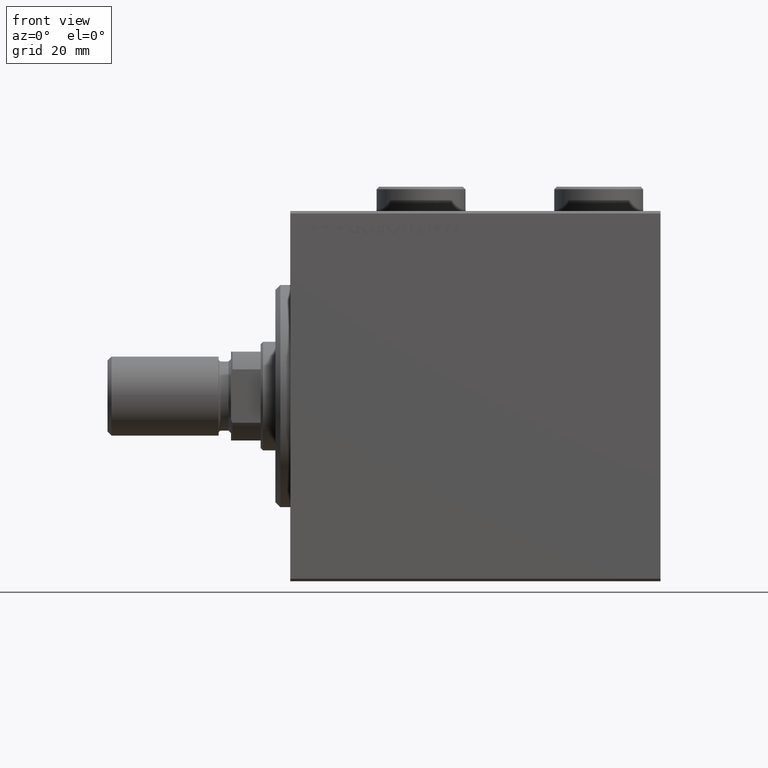
[diagram: clean part render]
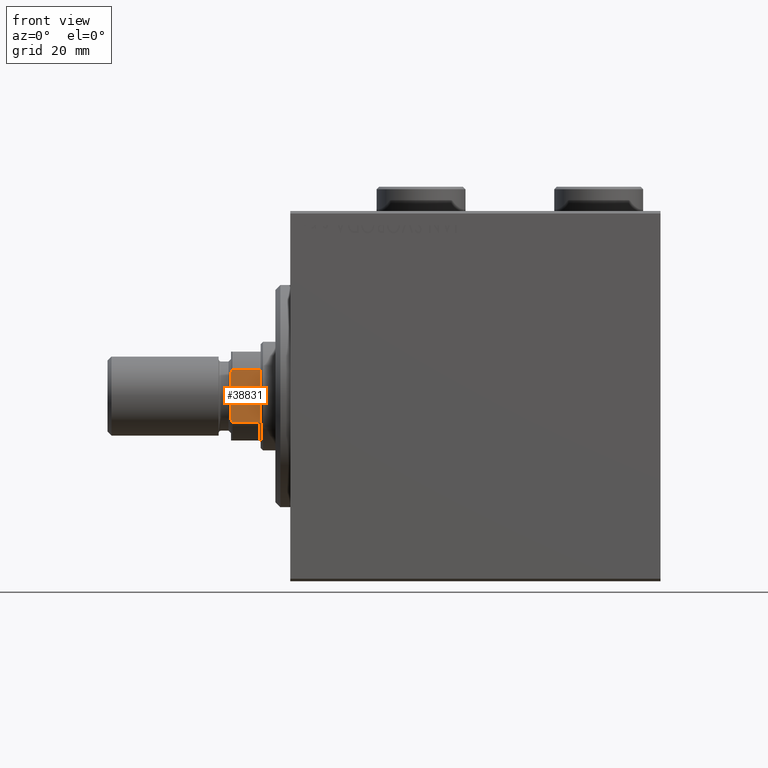
[diagram: same view with one face highlighted and labeled with its STEP entity id]
A machine part, front view. The second image highlights one B-rep face of the part: STEP entity #38831.
In plain terms, the highlighted planar face has unit normal (0, 1, 0).
Its self-contained STEP definition (entity closure, byte-faithful):
#1199 = CARTESIAN_POINT ( 'NONE',  ( 4.800000000000006928, -9.000000000000001776, 77.00000000000001421 ) ) ;
#1614 = LINE ( 'NONE', #12778, #33532 ) ;
#2378 = EDGE_CURVE ( 'NONE', #13527, #15455, #12518, .T. ) ;
#2830 = CARTESIAN_POINT ( 'NONE',  ( -4.799999999999995381, -9.000000000000001776, 77.00000000000001421 ) ) ;
#3049 = DIRECTION ( 'NONE',  ( -0.000000000000000000, -0.000000000000000000, 1.000000000000000000 ) ) ;
#3078 = FACE_OUTER_BOUND ( 'NONE', #22527, .T. ) ;
#3727 = VERTEX_POINT ( 'NONE', #34251 ) ;
#6006 = CARTESIAN_POINT ( 'NONE',  ( -5.207299490555470811, -9.000000000000001776, 76.80354495430069051 ) ) ;
#6024 = CARTESIAN_POINT ( 'NONE',  ( 5.207299490555477028, -8.999999999999998224, 76.80354495430069051 ) ) ;
#6805 = DIRECTION ( 'NONE',  ( 0.000000000000000000, 1.000000000000000000, 0.000000000000000000 ) ) ;
#9135 = ORIENTED_EDGE ( 'NONE', *, *, #32938, .T. ) ;
#10020 = CARTESIAN_POINT ( 'NONE',  ( 5.408326913195988794, -8.999999999999998224, -0.001000000000001000089 ) ) ;
#12048 = CARTESIAN_POINT ( 'NONE',  ( 4.800000000000006928, -9.000000000000001776, 77.00000000000001421 ) ) ;
#12518 = B_SPLINE_CURVE_WITH_KNOTS ( 'NONE', 3,
 ( #35082, #16923, #6006, #20184 ),
 .UNSPECIFIED., .F., .F.,
 ( 4, 4 ),
 ( 0.000000000000000000, 0.0006782784334759310802 ),
 .UNSPECIFIED. ) ;
#12778 = CARTESIAN_POINT ( 'NONE',  ( -8.999999999999998224, -9.000000000000001776, 77.00000000000001421 ) ) ;
#13527 = VERTEX_POINT ( 'NONE', #2830 ) ;
#13936 = CARTESIAN_POINT ( 'NONE',  ( -5.408326913195988794, -8.999999999999998224, 71.00000000000002842 ) ) ;
#15091 = LINE ( 'NONE', #28596, #39878 ) ;
#15455 = VERTEX_POINT ( 'NONE', #18051 ) ;
#16923 = CARTESIAN_POINT ( 'NONE',  ( -5.004607318780298186, -9.000000000000001776, 76.90371420292693472 ) ) ;
#17390 = EDGE_CURVE ( 'NONE', #3727, #42357, #31199, .T. ) ;
#17641 = CARTESIAN_POINT ( 'NONE',  ( -8.999999999999998224, -9.000000000000001776, 71.00000000000001421 ) ) ;
#17866 = DIRECTION ( 'NONE',  ( 1.000000000000000000, 0.000000000000000000, 0.000000000000000000 ) ) ;
#18051 = CARTESIAN_POINT ( 'NONE',  ( -5.408326913195988794, -8.999999999999998224, 76.70000000000001705 ) ) ;
#19986 = DIRECTION ( 'NONE',  ( 1.000000000000000000, 0.000000000000000000, 0.000000000000000000 ) ) ;
#20184 = CARTESIAN_POINT ( 'NONE',  ( -5.408326913195988794, -8.999999999999998224, 76.70000000000001705 ) ) ;
#20199 = CARTESIAN_POINT ( 'NONE',  ( 5.408326913195988794, -8.999999999999998224, 76.70000000000001705 ) ) ;
#22527 = EDGE_LOOP ( 'NONE', ( #28917, #9135, #38821, #25252, #42007, #36898 ) ) ;
#22771 = EDGE_CURVE ( 'NONE', #31073, #15455, #15091, .T. ) ;
#25252 = ORIENTED_EDGE ( 'NONE', *, *, #2378, .T. ) ;
#27955 = PLANE ( 'NONE',  #42438 ) ;
#28596 = CARTESIAN_POINT ( 'NONE',  ( -5.408326913195988794, -8.999999999999998224, -0.001000000000001000089 ) ) ;
#28917 = ORIENTED_EDGE ( 'NONE', *, *, #17390, .T. ) ;
#28959 = VECTOR ( 'NONE', #17866, 1000.000000000000000 ) ;
#29270 = CARTESIAN_POINT ( 'NONE',  ( 5.408326913195988794, -8.999999999999998224, 76.70000000000001705 ) ) ;
#31073 = VERTEX_POINT ( 'NONE', #13936 ) ;
#31199 = LINE ( 'NONE', #10020, #45679 ) ;
#31465 = CARTESIAN_POINT ( 'NONE',  ( -8.999999999999998224, -9.000000000000001776, 77.00000000000001421 ) ) ;
#32671 = B_SPLINE_CURVE_WITH_KNOTS ( 'NONE', 3,
 ( #20199, #6024, #43938, #12048 ),
 .UNSPECIFIED., .F., .F.,
 ( 4, 4 ),
 ( 0.000000000000000000, 0.0006782784334759201297 ),
 .UNSPECIFIED. ) ;
#32938 = EDGE_CURVE ( 'NONE', #42357, #44157, #32671, .T. ) ;
#33532 = VECTOR ( 'NONE', #19986, 1000.000000000000000 ) ;
#34251 = CARTESIAN_POINT ( 'NONE',  ( 5.408326913195988794, -8.999999999999998224, 71.00000000000002842 ) ) ;
#35082 = CARTESIAN_POINT ( 'NONE',  ( -4.799999999999995381, -9.000000000000001776, 77.00000000000001421 ) ) ;
#35821 = DIRECTION ( 'NONE',  ( -0.000000000000000000, -0.000000000000000000, 1.000000000000000000 ) ) ;
#36898 = ORIENTED_EDGE ( 'NONE', *, *, #37167, .T. ) ;
#37167 = EDGE_CURVE ( 'NONE', #31073, #3727, #39258, .T. ) ;
#38821 = ORIENTED_EDGE ( 'NONE', *, *, #39602, .F. ) ;
#38831 = ADVANCED_FACE ( 'NONE', ( #3078 ), #27955, .F. ) ;
#39258 = LINE ( 'NONE', #17641, #28959 ) ;
#39602 = EDGE_CURVE ( 'NONE', #13527, #44157, #1614, .T. ) ;
#39878 = VECTOR ( 'NONE', #35821, 1000.000000000000000 ) ;
#42007 = ORIENTED_EDGE ( 'NONE', *, *, #22771, .F. ) ;
#42166 = DIRECTION ( 'NONE',  ( 0.000000000000000000, -0.000000000000000000, 1.000000000000000000 ) ) ;
#42357 = VERTEX_POINT ( 'NONE', #29270 ) ;
#42438 = AXIS2_PLACEMENT_3D ( 'NONE', #31465, #6805, #42166 ) ;
#43938 = CARTESIAN_POINT ( 'NONE',  ( 5.004607318780310621, -9.000000000000001776, 76.90371420292693472 ) ) ;
#44157 = VERTEX_POINT ( 'NONE', #1199 ) ;
#45679 = VECTOR ( 'NONE', #3049, 1000.000000000000000 ) ;